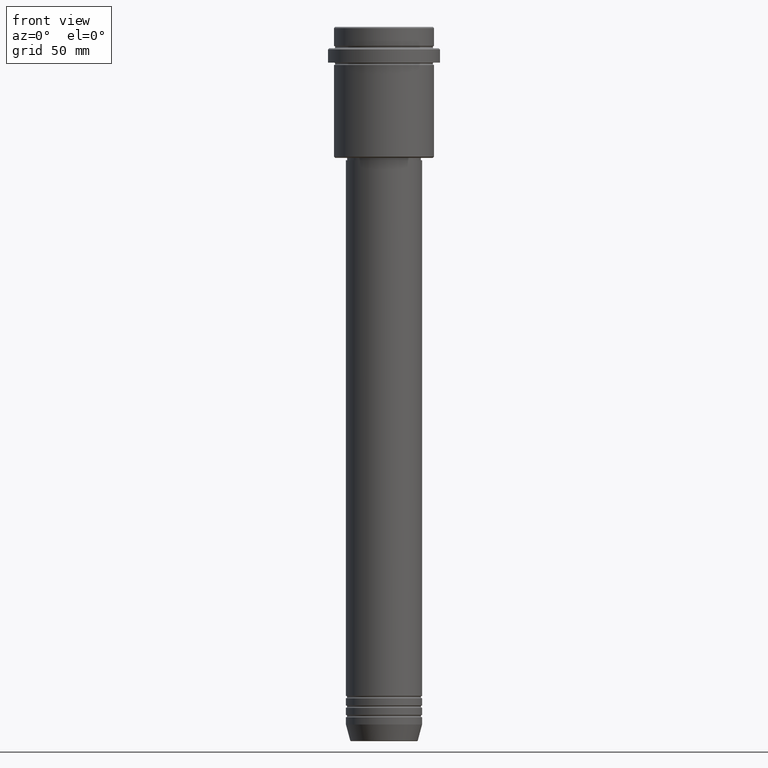
[diagram: clean part render]
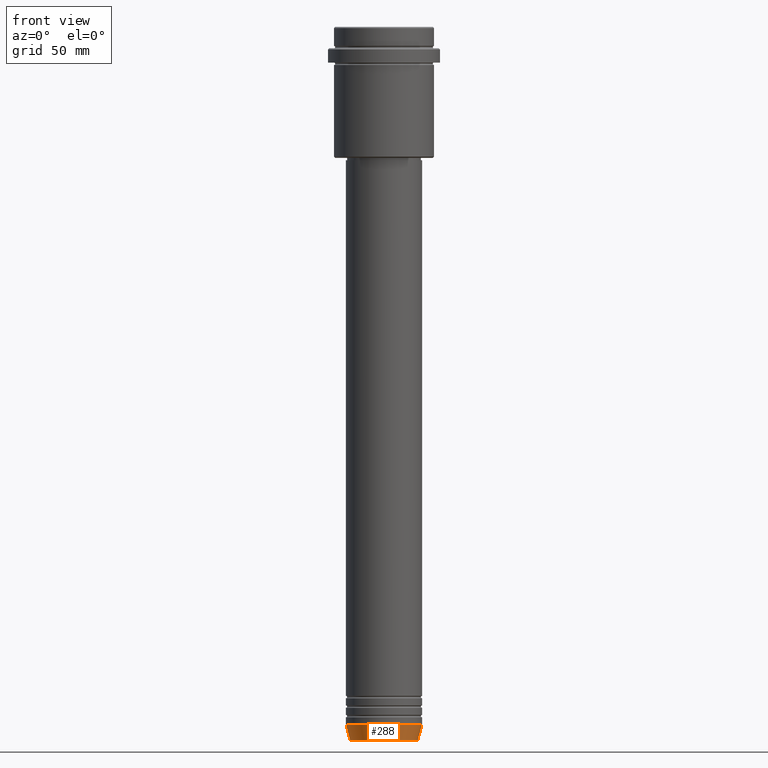
[diagram: same view with one face highlighted and labeled with its STEP entity id]
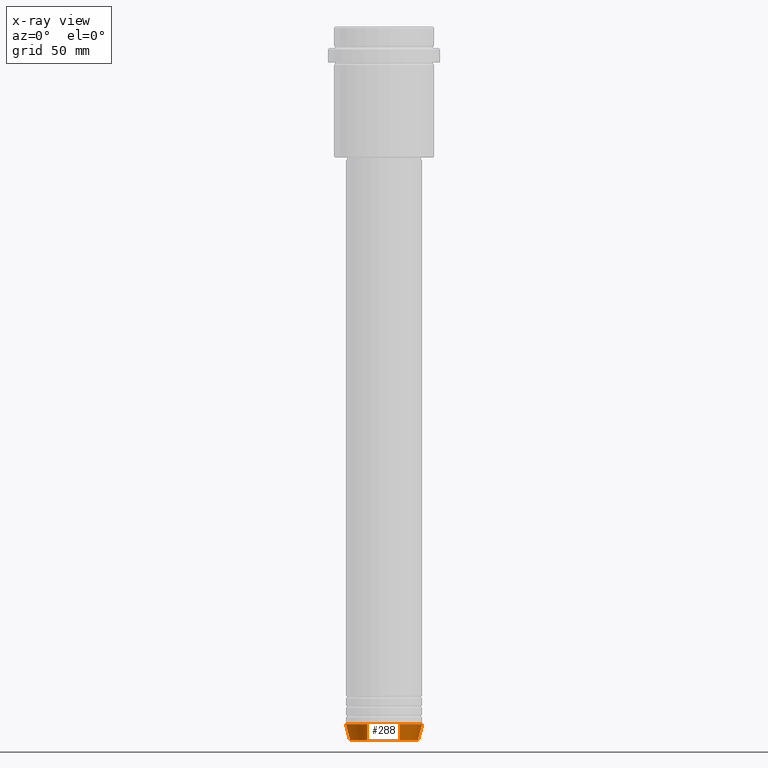
[diagram: x-ray of the same camera — body ghosted, the highlighted face saturated]
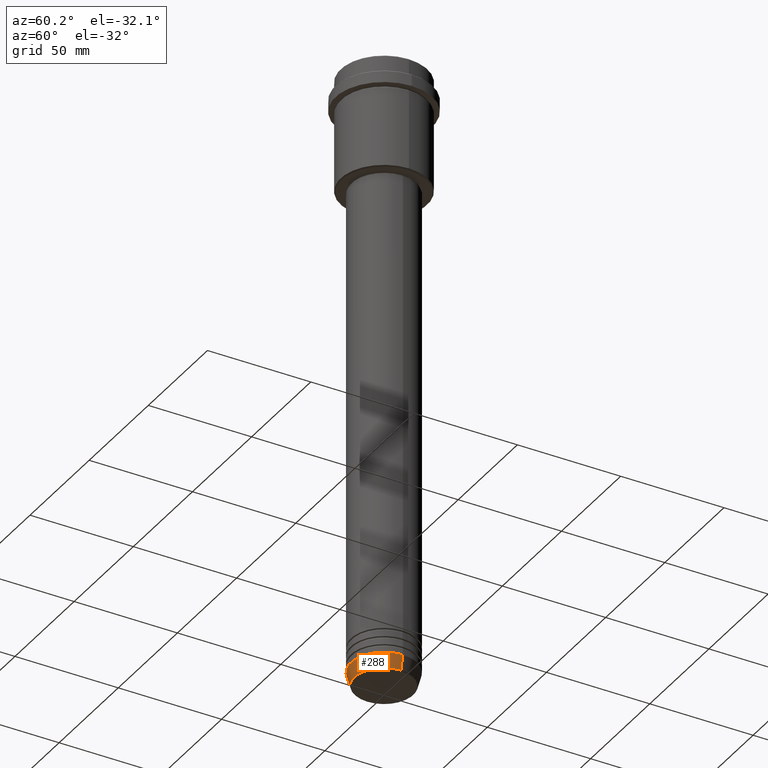
[diagram: same view with one face highlighted and labeled with its STEP entity id]
A machine part, front view. The second image highlights one B-rep face of the part: STEP entity #288.
The next image is the same camera in x-ray: the body ghosted, the highlighted face saturated — about 0% of this face is hidden behind the body in this view.
A second angle (auxiliary view) of the same face is appended — the face is thin or edge-on in the first view.
In plain terms, the highlighted conical surface has half-angle 15 deg.
Its self-contained STEP definition (entity closure, byte-faithful):
#20 = CARTESIAN_POINT ( 'NONE',  ( 0.000000000000000000, 0.000000000000000000, -293.0000000000000000 ) ) ;
#80 = CONICAL_SURFACE ( 'NONE', #874, 16.00000000000000000, 0.2617993877991500740 ) ;
#94 = DIRECTION ( 'NONE',  ( -0.000000000000000000, -0.000000000000000000, 1.000000000000000000 ) ) ;
#210 = EDGE_CURVE ( 'NONE', #1391, #404, #347, .T. ) ;
#235 = ORIENTED_EDGE ( 'NONE', *, *, #210, .T. ) ;
#236 = EDGE_CURVE ( 'NONE', #605, #404, #932, .T. ) ;
#246 = AXIS2_PLACEMENT_3D ( 'NONE', #1075, #94, #1101 ) ;
#280 = ORIENTED_EDGE ( 'NONE', *, *, #1206, .F. ) ;
#288 = ADVANCED_FACE ( 'NONE', ( #569 ), #80, .T. ) ;
#347 = LINE ( 'NONE', #454, #737 ) ;
#404 = VERTEX_POINT ( 'NONE', #943 ) ;
#448 = LINE ( 'NONE', #1218, #465 ) ;
#449 = CARTESIAN_POINT ( 'NONE',  ( 0.000000000000000000, 0.000000000000000000, -293.0000000000000000 ) ) ;
#454 = CARTESIAN_POINT ( 'NONE',  ( 16.00000000000000000, 0.000000000000000000, -293.0000000000000000 ) ) ;
#461 = CIRCLE ( 'NONE', #246, 14.22365507213718772 ) ;
#465 = VECTOR ( 'NONE', #542, 1000.000000000000000 ) ;
#523 = CARTESIAN_POINT ( 'NONE',  ( -16.00000000000000000, 1.959434878635765131E-15, -293.0000000000000000 ) ) ;
#542 = DIRECTION ( 'NONE',  ( -0.2588190451025213501, 3.169619151431772337E-17, 0.9659258262890680902 ) ) ;
#550 = EDGE_CURVE ( 'NONE', #1360, #1391, #461, .T. ) ;
#569 = FACE_OUTER_BOUND ( 'NONE', #675, .T. ) ;
#586 = CARTESIAN_POINT ( 'NONE',  ( -14.22365507213718772, 1.850665122131323337E-15, -299.6294095225512137 ) ) ;
#605 = VERTEX_POINT ( 'NONE', #523 ) ;
#631 = CARTESIAN_POINT ( 'NONE',  ( 14.22365507213718772, 0.000000000000000000, -299.6294095225512137 ) ) ;
#675 = EDGE_LOOP ( 'NONE', ( #280, #827, #235, #707 ) ) ;
#707 = ORIENTED_EDGE ( 'NONE', *, *, #236, .F. ) ;
#737 = VECTOR ( 'NONE', #1015, 1000.000000000000000 ) ;
#790 = DIRECTION ( 'NONE',  ( -0.000000000000000000, -0.000000000000000000, 1.000000000000000000 ) ) ;
#827 = ORIENTED_EDGE ( 'NONE', *, *, #550, .T. ) ;
#874 = AXIS2_PLACEMENT_3D ( 'NONE', #20, #790, #1142 ) ;
#925 = AXIS2_PLACEMENT_3D ( 'NONE', #449, #1008, #1227 ) ;
#932 = CIRCLE ( 'NONE', #925, 16.00000000000000000 ) ;
#943 = CARTESIAN_POINT ( 'NONE',  ( 16.00000000000000000, 0.000000000000000000, -293.0000000000000000 ) ) ;
#1008 = DIRECTION ( 'NONE',  ( -0.000000000000000000, -0.000000000000000000, 1.000000000000000000 ) ) ;
#1015 = DIRECTION ( 'NONE',  ( 0.2588190451025213501, 0.000000000000000000, 0.9659258262890680902 ) ) ;
#1075 = CARTESIAN_POINT ( 'NONE',  ( 0.000000000000000000, 0.000000000000000000, -299.6294095225512137 ) ) ;
#1101 = DIRECTION ( 'NONE',  ( 1.000000000000000000, 0.000000000000000000, 0.000000000000000000 ) ) ;
#1142 = DIRECTION ( 'NONE',  ( 1.000000000000000000, 0.000000000000000000, 0.000000000000000000 ) ) ;
#1206 = EDGE_CURVE ( 'NONE', #1360, #605, #448, .T. ) ;
#1218 = CARTESIAN_POINT ( 'NONE',  ( -16.00000000000000000, 1.959434878635765131E-15, -293.0000000000000000 ) ) ;
#1227 = DIRECTION ( 'NONE',  ( 1.000000000000000000, 0.000000000000000000, 0.000000000000000000 ) ) ;
#1360 = VERTEX_POINT ( 'NONE', #586 ) ;
#1391 = VERTEX_POINT ( 'NONE', #631 ) ;